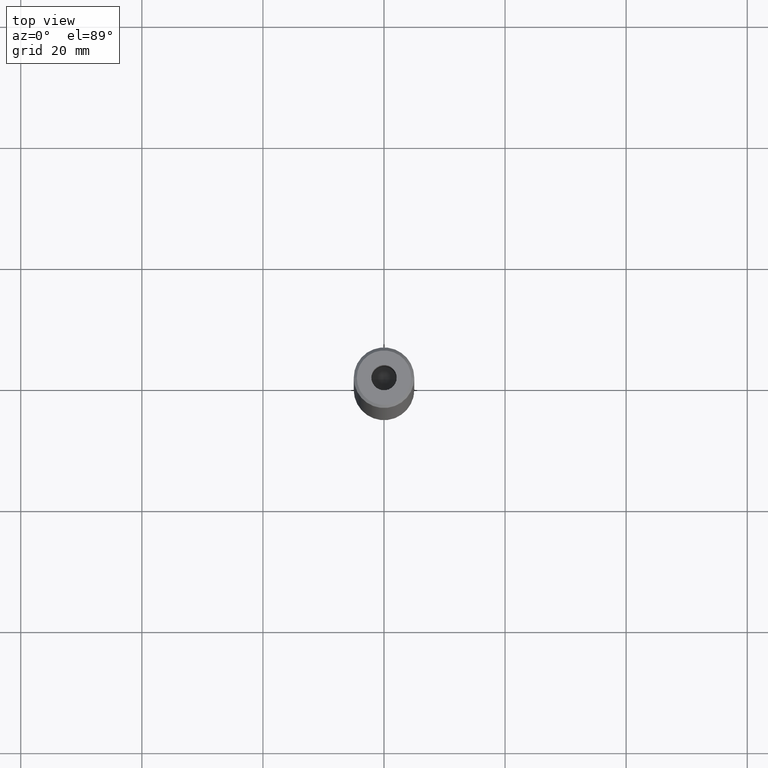
[diagram: clean part render]
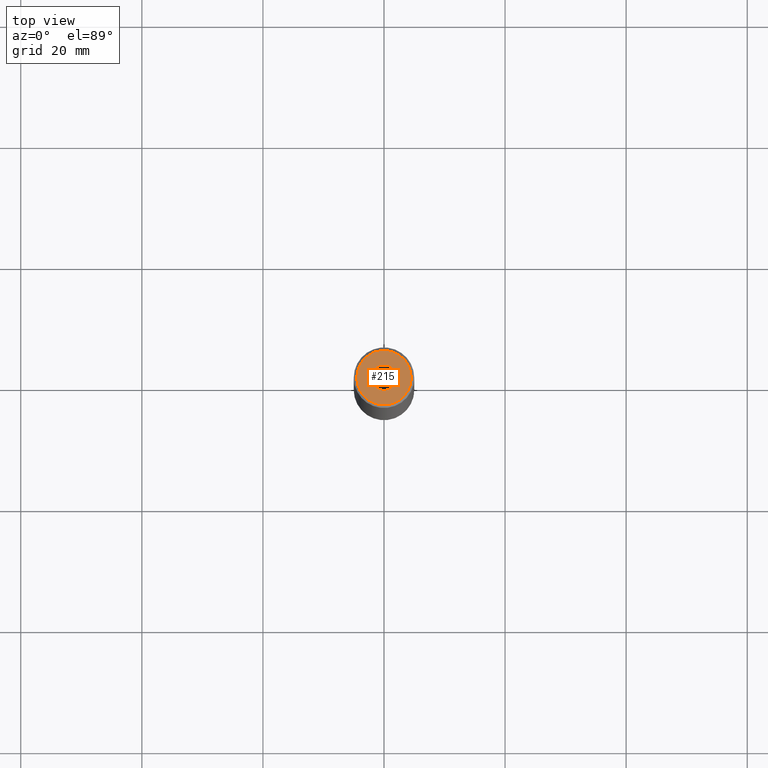
[diagram: same view with one face highlighted and labeled with its STEP entity id]
A machine part, top view. The second image highlights one B-rep face of the part: STEP entity #215.
In plain terms, the highlighted planar face has unit normal (0, -0, 1).
Its self-contained STEP definition (entity closure, byte-faithful):
#26 = DIRECTION ( 'NONE',  ( 1.000000000000000000, 0.000000000000000000, 0.000000000000000000 ) ) ;
#38 = EDGE_CURVE ( 'NONE', #201, #547, #530, .T. ) ;
#39 = DIRECTION ( 'NONE',  ( -0.000000000000000000, -0.000000000000000000, 1.000000000000000000 ) ) ;
#47 = DIRECTION ( 'NONE',  ( 0.000000000000000000, -0.000000000000000000, 1.000000000000000000 ) ) ;
#95 = CARTESIAN_POINT ( 'NONE',  ( -2.099999999999998757, 2.571758278209439985E-16, -1.990051048614449116E-16 ) ) ;
#104 = AXIS2_PLACEMENT_3D ( 'NONE', #167, #340, #343 ) ;
#108 = EDGE_CURVE ( 'NONE', #147, #496, #386, .T. ) ;
#117 = AXIS2_PLACEMENT_3D ( 'NONE', #396, #587, #451 ) ;
#130 = FACE_BOUND ( 'NONE', #468, .T. ) ;
#147 = VERTEX_POINT ( 'NONE', #302 ) ;
#151 = ORIENTED_EDGE ( 'NONE', *, *, #177, .F. ) ;
#154 = ORIENTED_EDGE ( 'NONE', *, *, #38, .F. ) ;
#167 = CARTESIAN_POINT ( 'NONE',  ( 0.000000000000000000, 0.000000000000000000, 0.000000000000000000 ) ) ;
#174 = AXIS2_PLACEMENT_3D ( 'NONE', #510, #244, #26 ) ;
#176 = CARTESIAN_POINT ( 'NONE',  ( 0.000000000000000000, 0.000000000000000000, 0.000000000000000000 ) ) ;
#177 = EDGE_CURVE ( 'NONE', #547, #201, #324, .T. ) ;
#199 = CARTESIAN_POINT ( 'NONE',  ( -4.499999999999990230, 0.000000000000000000, 0.000000000000000000 ) ) ;
#201 = VERTEX_POINT ( 'NONE', #531 ) ;
#215 = ADVANCED_FACE ( 'NONE', ( #130, #316 ), #502, .T. ) ;
#244 = DIRECTION ( 'NONE',  ( -0.000000000000000000, -0.000000000000000000, 1.000000000000000000 ) ) ;
#250 = AXIS2_PLACEMENT_3D ( 'NONE', #479, #39, #482 ) ;
#273 = ORIENTED_EDGE ( 'NONE', *, *, #429, .T. ) ;
#302 = CARTESIAN_POINT ( 'NONE',  ( 4.499999999999990230, 5.817072295949921509E-16, 0.000000000000000000 ) ) ;
#316 = FACE_OUTER_BOUND ( 'NONE', #401, .T. ) ;
#324 = CIRCLE ( 'NONE', #250, 2.099999999999998757 ) ;
#340 = DIRECTION ( 'NONE',  ( -0.000000000000000000, -0.000000000000000000, 1.000000000000000000 ) ) ;
#343 = DIRECTION ( 'NONE',  ( 1.000000000000000000, 0.000000000000000000, 0.000000000000000000 ) ) ;
#348 = CIRCLE ( 'NONE', #104, 4.499999999999990230 ) ;
#373 = ORIENTED_EDGE ( 'NONE', *, *, #108, .T. ) ;
#386 = CIRCLE ( 'NONE', #174, 4.499999999999990230 ) ;
#396 = CARTESIAN_POINT ( 'NONE',  ( 0.000000000000000000, 0.000000000000000000, -1.990051048614449116E-16 ) ) ;
#401 = EDGE_LOOP ( 'NONE', ( #273, #373 ) ) ;
#429 = EDGE_CURVE ( 'NONE', #496, #147, #348, .T. ) ;
#451 = DIRECTION ( 'NONE',  ( 1.000000000000000000, 0.000000000000000000, 0.000000000000000000 ) ) ;
#468 = EDGE_LOOP ( 'NONE', ( #154, #151 ) ) ;
#479 = CARTESIAN_POINT ( 'NONE',  ( 0.000000000000000000, 0.000000000000000000, -1.990051048614449116E-16 ) ) ;
#482 = DIRECTION ( 'NONE',  ( 1.000000000000000000, 0.000000000000000000, 0.000000000000000000 ) ) ;
#496 = VERTEX_POINT ( 'NONE', #199 ) ;
#502 = PLANE ( 'NONE',  #513 ) ;
#510 = CARTESIAN_POINT ( 'NONE',  ( 0.000000000000000000, 0.000000000000000000, 0.000000000000000000 ) ) ;
#513 = AXIS2_PLACEMENT_3D ( 'NONE', #176, #47, #545 ) ;
#530 = CIRCLE ( 'NONE', #117, 2.099999999999998757 ) ;
#531 = CARTESIAN_POINT ( 'NONE',  ( 2.099999999999998757, 0.000000000000000000, -1.990051048614449116E-16 ) ) ;
#545 = DIRECTION ( 'NONE',  ( 1.000000000000000000, 0.000000000000000000, 0.000000000000000000 ) ) ;
#547 = VERTEX_POINT ( 'NONE', #95 ) ;
#587 = DIRECTION ( 'NONE',  ( -0.000000000000000000, -0.000000000000000000, 1.000000000000000000 ) ) ;